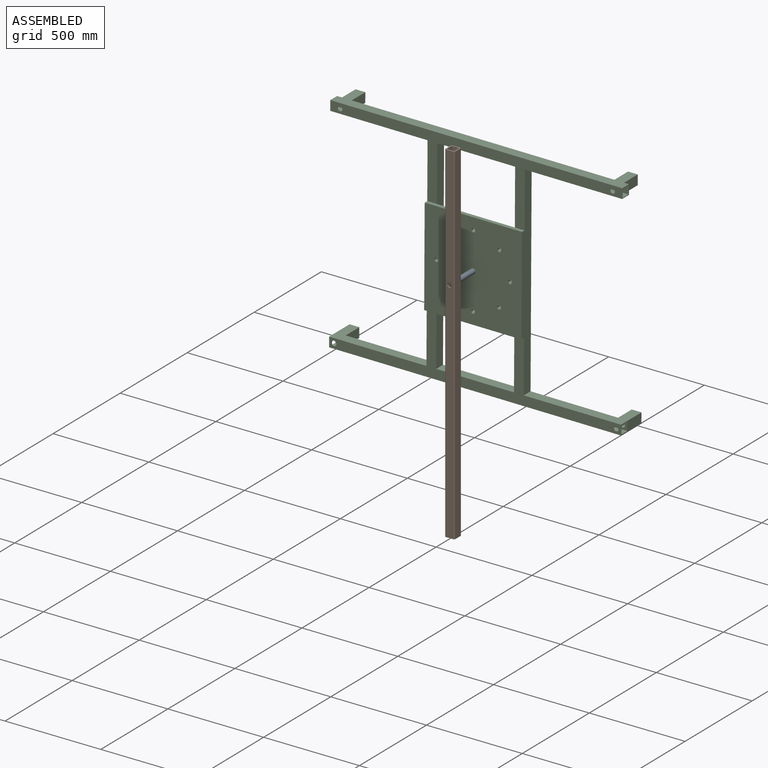
[diagram: assembled view]
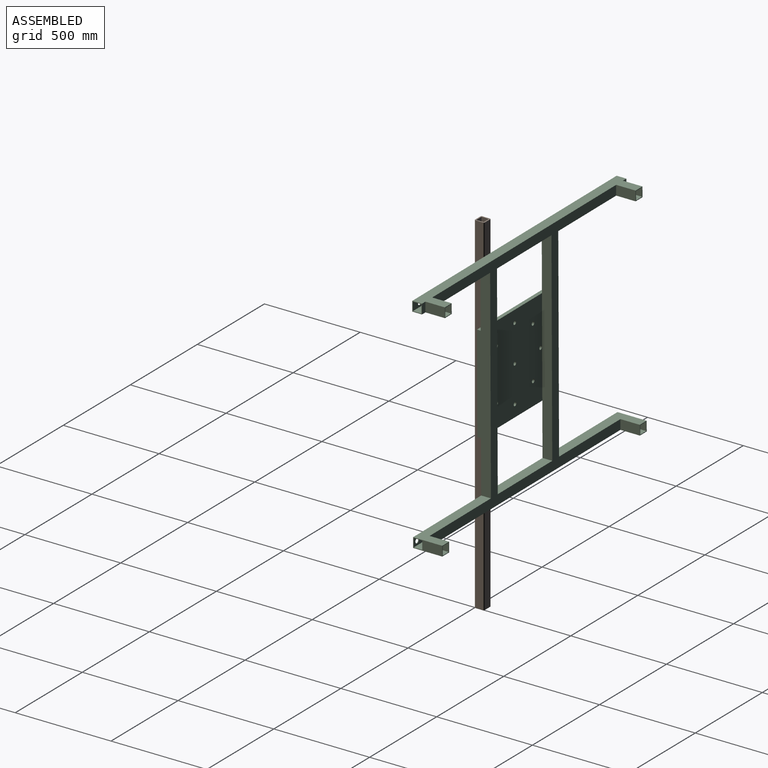
[diagram: assembled view, second angle]
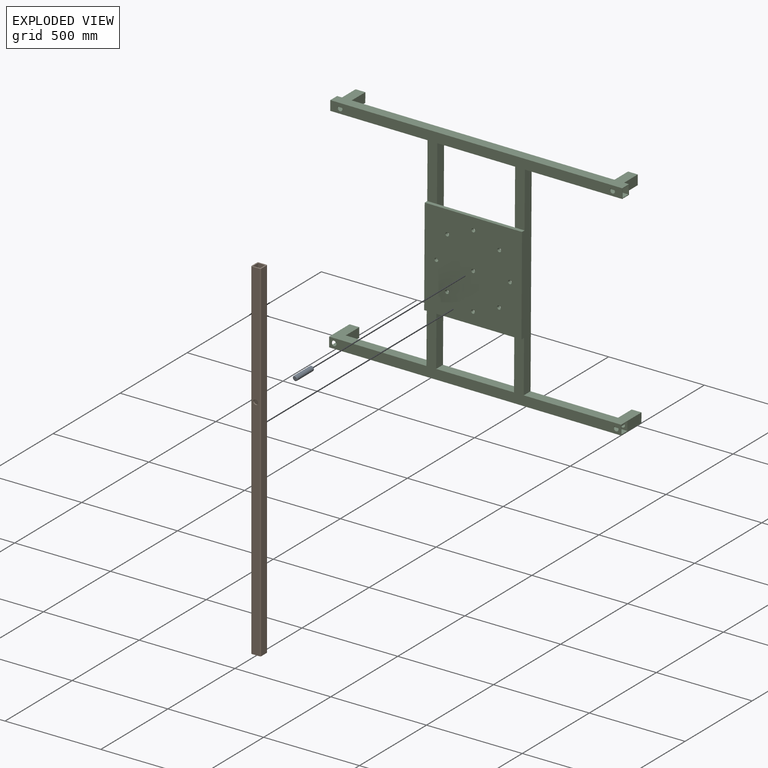
[diagram: exploded view]
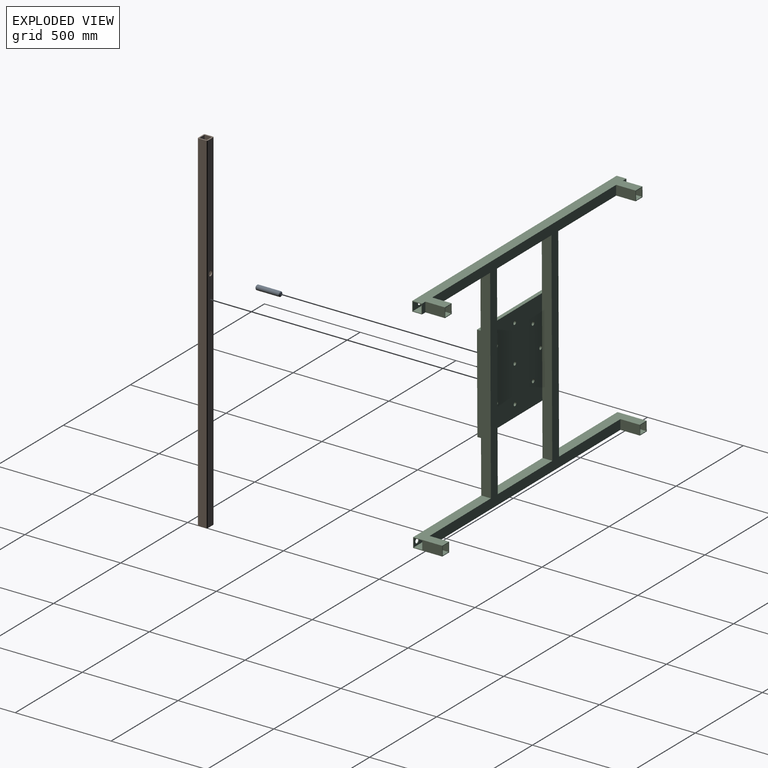
[diagram: exploded view, second angle]
ASSEMBLY  parts=3 mates=2
PART A: 5 faces, bbox 25.4x25.4x127 mm
  f0: cylinder r=12.7mm len=120.65mm, axis (0,0,-1), area 9627.4mm2, adj f3,f4
  f1: plane 19.05x19.05mm, normal (0,0,1), area 285mm2, adj f4
  f2: plane 19.05x19.05mm, normal (0,0,-1), area 285mm2, adj f3
  f3: cone r=12.7mm half-angle=45deg, axis (0,0,1), area 313.5mm2, adj f0,f2
  f4: cone r=9.53mm half-angle=45deg, axis (0,0,-1), area 313.5mm2, adj f0,f1
PART B: 16 faces, bbox 50.8x1828.8x50.8 mm
  f0: plane 1828.8x40.64mm, normal (0,0,1), area 73815.7mm2, adj f8,f9,f10,f13,f15
  f1: plane 1828.8x40.64mm, normal (-1,0,0), area 74322.4mm2, adj f8,f9,f10,f11
  f2: plane 1828.8x40.64mm, normal (0,0,-1), area 73815.7mm2, adj f8,f9,f11,f12,f14
  f3: plane 1828.8x38.1mm, normal (1,0,0), area 69677.3mm2, adj f4,f6,f8,f9
  f4: plane 1828.8x38.1mm, normal (0,0,-1), area 69170.6mm2, adj f3,f5,f8,f9,f15
  f5: plane 1828.8x38.1mm, normal (-1,0,0), area 69677.3mm2, adj f4,f6,f8,f9
  f6: plane 1828.8x38.1mm, normal (0,0,1), area 69170.6mm2, adj f3,f5,f8,f9,f14
  f7: plane 1828.8x40.64mm, normal (1,0,0), area 74322.4mm2, adj f8,f9,f12,f13
  f8: plane 50.8x50.8mm, normal (0,-1,0), area 1106.9mm2, adj f0,f1,f2,f3,f4,f5,f6,f7
  f9: plane 50.8x50.8mm, normal (0,1,0), area 1106.9mm2, adj f0,f1,f2,f3,f4,f5,f6,f7
  f10: cylinder r=5.08mm len=1828.8mm, axis (0,-1,0), area 14593.2mm2, adj f0,f1,f8,f9
  f11: cylinder r=5.08mm len=1828.8mm, axis (0,1,0), area 14593.2mm2, adj f1,f2,f8,f9
  f12: cylinder r=5.08mm len=1828.8mm, axis (0,-1,0), area 14593.2mm2, adj f2,f7,f8,f9
  f13: cylinder r=5.08mm len=1828.8mm, axis (0,1,0), area 14593.2mm2, adj f0,f7,f8,f9
  f14: cylinder r=12.7mm len=25.4mm, axis (0,0,1), area 506.7mm2, adj f2,f6
  f15: cylinder r=12.7mm len=25.4mm, axis (0,0,1), area 506.7mm2, adj f0,f4
PART C: 86 faces, bbox 1168.4x171.5x1524 mm
  f0: plane 1524x338.16mm, normal (0,-1,0), area 105601.8mm2, adj f4,f5,f8,f10,f12,f13,f14,f15
  f1: plane 50.8x25.4mm, normal (0,1,0), area 1290.3mm2, adj f4,f14,f15,f65
  f2: plane 1422.4x1168.4mm, normal (0,1,0), area 250322.1mm2, adj f8,f9,f10,f11,f12,f13,f14,f15
  f3: plane 50.8x25.4mm, normal (0,1,0), area 1290.3mm2, adj f5,f13,f14,f56
  f4: plane 50.8x50.8mm, normal (0,0,1), area 604.8mm2, adj f0,f1,f14,f15,f27,f28,f33,f34
  f5: plane 50.8x50.8mm, normal (0,0,-1), area 604.8mm2, adj f0,f3,f13,f14,f26,f27,f33,f34
  f6: plane 152.4x50.8mm, normal (0,0,-1), area 5766.1mm2, adj f11,f18,f20,f24,f31,f33,f34,f40
  f7: plane 152.4x50.8mm, normal (0,0,1), area 5766.1mm2, adj f17,f18,f20,f30,f31,f33,f34,f47
  f8: plane 1066.8x50.8mm, normal (0,0,1), area 54193.4mm2, adj f0,f2,f9,f19,f20,f73
  f9: plane 406.4x50.8mm, normal (1,0,0), area 20645.1mm2, adj f2,f8,f10,f20
  f10: plane 1066.8x50.8mm, normal (0,0,-1), area 54193.4mm2, adj f0,f2,f9,f19,f20,f73
  f11: plane 508x152.4mm, normal (1,0,0), area 30967.7mm2, adj f2,f6,f12,f20,f35,f40
  f12: plane 1066.8x69.85mm, normal (0,0,-1), area 63870.8mm2, adj f0,f2,f11,f13,f20,f74,f75,f76
  f13: plane 508x152.4mm, normal (-1,0,0), area 30967.7mm2, adj f0,f2,f3,f5,f12,f56,f57,f59
  f14: plane 1524x152.4mm, normal (1,0,0), area 87741.8mm2, adj f0,f1,f2,f3,f4,f5,f56,f57
  f15: plane 508x152.4mm, normal (-1,0,0), area 30967.7mm2, adj f0,f1,f2,f4,f16,f64,f65,f67
  f16: plane 1066.8x69.85mm, normal (0,0,1), area 63870.8mm2, adj f0,f2,f15,f17,f20,f74,f75,f76
  f17: plane 508x152.4mm, normal (1,0,0), area 30967.7mm2, adj f2,f7,f16,f20,f45,f47
  f18: plane 1524x152.4mm, normal (-1,0,0), area 87741.8mm2, adj f2,f6,f7,f20,f35,f40,f45,f47
  f19: plane 406.4x50.8mm, normal (-1,0,0), area 20645.1mm2, adj f0,f2,f8,f10
  f20: plane 1524x322.24mm, normal (0,-1,0), area 103983.8mm2, adj f6,f7,f8,f9,f10,f11,f12,f16
  f21: plane 1073.15x44.45mm, normal (0,0,-1), area 47701.5mm2, adj f22,f32,f33,f34
  f22: plane 412.75x44.45mm, normal (-1,0,0), area 18346.7mm2, adj f21,f23,f33,f34
  f23: plane 1073.15x44.45mm, normal (0,0,1), area 47701.5mm2, adj f22,f32,f33,f34
  f24: plane 511.18x44.45mm, normal (-1,0,0), area 22721.7mm2, adj f6,f25,f33,f34
  f25: plane 1073.15x44.45mm, normal (0,0,1), area 47701.5mm2, adj f24,f26,f33,f34
  f26: plane 511.18x44.45mm, normal (1,0,0), area 22721.7mm2, adj f5,f25,f33,f34
  f27: plane 1524x44.45mm, normal (-1,0,0), area 67741.8mm2, adj f4,f5,f33,f34
  f28: plane 511.18x44.45mm, normal (1,0,0), area 22721.7mm2, adj f4,f29,f33,f34
  f29: plane 1073.15x44.45mm, normal (0,0,-1), area 47701.5mm2, adj f28,f30,f33,f34
  f30: plane 511.18x44.45mm, normal (-1,0,0), area 22721.7mm2, adj f7,f29,f33,f34
  f31: plane 1524x44.45mm, normal (1,0,0), area 67741.8mm2, adj f6,f7,f33,f34
  f32: plane 412.75x44.45mm, normal (1,0,0), area 18346.7mm2, adj f21,f23,f33,f34
  f33: plane 1524x1162.05mm, normal (0,1,0), area 228859.8mm2, adj f4,f5,f6,f7,f21,f22,f23,f24
  f34: plane 1524x1162.05mm, normal (0,-1,0), area 228859.8mm2, adj f4,f5,f6,f7,f21,f22,f23,f24
  f35: plane 101.6x50.8mm, normal (0,0,1), area 5161.3mm2, adj f2,f11,f18,f40
  f36: plane 101.6x44.45mm, normal (1,0,0), area 4516.1mm2, adj f37,f39,f40,f41
  f37: plane 101.6x44.45mm, normal (0,0,1), area 4516.1mm2, adj f36,f38,f40,f41
  f38: plane 101.6x44.45mm, normal (-1,0,0), area 4516.1mm2, adj f37,f39,f40,f41
  f39: plane 101.6x44.45mm, normal (0,0,-1), area 4516.1mm2, adj f36,f38,f40,f41
  f40: plane 50.8x50.8mm, normal (0,1,0), area 604.8mm2, adj f6,f11,f18,f35,f36,f37,f38,f39
  f41: plane 44.45x44.45mm, normal (0,1,0), area 1469.1mm2, adj f36,f37,f38,f39,f50
  f42: plane 101.6x44.45mm, normal (1,0,0), area 4516.1mm2, adj f43,f46,f47,f48
  f43: plane 101.6x44.45mm, normal (0,0,1), area 4516.1mm2, adj f42,f44,f47,f48
  f44: plane 101.6x44.45mm, normal (-1,0,0), area 4516.1mm2, adj f43,f46,f47,f48
  f45: plane 101.6x50.8mm, normal (0,0,-1), area 5161.3mm2, adj f2,f17,f18,f47
  f46: plane 101.6x44.45mm, normal (0,0,-1), area 4516.1mm2, adj f42,f44,f47,f48
  f47: plane 50.8x50.8mm, normal (0,1,0), area 604.8mm2, adj f7,f17,f18,f42,f43,f44,f45,f46
  f48: plane 44.45x44.45mm, normal (0,1,0), area 1469.1mm2, adj f42,f43,f44,f46,f49
  f49: cylinder r=12.7mm len=25.4mm, axis (0,-1,0), area 253.4mm2, adj f34,f48
  f50: cylinder r=12.7mm len=25.4mm, axis (0,-1,0), area 253.4mm2, adj f34,f41
  f51: cylinder r=12.7mm len=25.4mm, axis (0,-1,0), area 253.4mm2, adj f20,f33
  f52: cylinder r=12.7mm len=25.4mm, axis (0,-1,0), area 253.4mm2, adj f20,f33
  f53: plane 101.6x44.45mm, normal (1,0,0), area 4516.1mm2, adj f54,f58,f59,f60
  f54: plane 101.6x44.45mm, normal (0,0,1), area 4516.1mm2, adj f53,f55,f59,f60
  f55: plane 101.6x44.45mm, normal (-1,0,0), area 4516.1mm2, adj f54,f58,f59,f60
  f56: plane 101.6x50.8mm, normal (0,0,-1), area 5161.3mm2, adj f3,f13,f14,f59
  f57: plane 101.6x50.8mm, normal (0,0,1), area 5161.3mm2, adj f2,f13,f14,f59
  f58: plane 101.6x44.45mm, normal (0,0,-1), area 4516.1mm2, adj f53,f55,f59,f60
  f59: plane 50.8x50.8mm, normal (0,1,0), area 604.8mm2, adj f13,f14,f53,f54,f55,f56,f57,f58
  f60: plane 44.45x44.45mm, normal (0,1,0), area 1469.1mm2, adj f53,f54,f55,f58,f70
  f61: plane 101.6x44.45mm, normal (1,0,0), area 4516.1mm2, adj f62,f66,f67,f68
  f62: plane 101.6x44.45mm, normal (0,0,1), area 4516.1mm2, adj f61,f63,f67,f68
  f63: plane 101.6x44.45mm, normal (-1,0,0), area 4516.1mm2, adj f62,f66,f67,f68
  f64: plane 101.6x50.8mm, normal (0,0,-1), area 5161.3mm2, adj f2,f14,f15,f67
  f65: plane 101.6x50.8mm, normal (0,0,1), area 5161.3mm2, adj f1,f14,f15,f67
  f66: plane 101.6x44.45mm, normal (0,0,-1), area 4516.1mm2, adj f61,f63,f67,f68
  f67: plane 50.8x50.8mm, normal (0,1,0), area 604.8mm2, adj f14,f15,f61,f62,f63,f64,f65,f66
  f68: plane 44.45x44.45mm, normal (0,1,0), area 1469.1mm2, adj f61,f62,f63,f66,f69
  f69: cylinder r=12.7mm len=25.4mm, axis (0,-1,0), area 253.4mm2, adj f34,f68
  f70: cylinder r=12.7mm len=25.4mm, axis (0,-1,0), area 253.4mm2, adj f34,f60
  f71: cylinder r=12.7mm len=25.4mm, axis (0,-1,0), area 253.4mm2, adj f0,f33
  f72: cylinder r=12.7mm len=25.4mm, axis (0,-1,0), area 253.4mm2, adj f0,f33
  f73: plane 508x406.4mm, normal (0,1,0), area 203886mm2, adj f8,f10,f74,f75,f77,f78,f79,f80
  f74: plane 508x19.05mm, normal (1,0,0), area 9677.4mm2, adj f0,f12,f16,f73,f76
  f75: plane 508x19.05mm, normal (-1,0,0), area 9677.4mm2, adj f12,f16,f20,f73,f76
  f76: plane 508x508mm, normal (0,-1,0), area 255498.8mm2, adj f12,f16,f74,f75,f77,f78,f79,f80
  f77: cylinder r=9.53mm len=19.05mm, axis (0,-1,0), area 1140.1mm2, adj f73,f76
  f78: cylinder r=9.53mm len=19.05mm, axis (0,-1,0), area 1140.1mm2, adj f73,f76
  f79: cylinder r=9.53mm len=19.05mm, axis (0,-1,0), area 1140.1mm2, adj f73,f76
  f80: cylinder r=9.53mm len=19.05mm, axis (0,-1,0), area 1140.1mm2, adj f73,f76
  f81: cylinder r=9.53mm len=19.05mm, axis (0,-1,0), area 1140.1mm2, adj f73,f76
  f82: cylinder r=9.53mm len=19.05mm, axis (0,-1,0), area 1140.1mm2, adj f73,f76
  f83: cylinder r=9.53mm len=19.05mm, axis (0,-1,0), area 1140.1mm2, adj f73,f76
  f84: cylinder r=9.53mm len=19.05mm, axis (0,-1,0), area 1140.1mm2, adj f73,f76
  f85: cylinder r=9.53mm len=19.05mm, axis (0,-1,0), area 1140.1mm2, adj f73,f76
PLACE A rot(axis=(-1,0,0),90deg) t=(-1959.44,-406.07,-312.43)mm
PLACE B rot(axis=(-1,0,0),90deg) t=(-1967.12,-428.83,-1506.23)mm
PLACE C rot(axis=(0,-1,0),89.7deg) t=(-1968.95,-212.39,253.68)mm
MATE cylindrical A.f0 <-> C.f79  axis (0,1,0) through (-1959.44,-282.24,-312.43)mm
MATE slider B.f14 <-> A.f0  axis (0,1,0) through (-1959.44,-406.07,-312.43)mm
